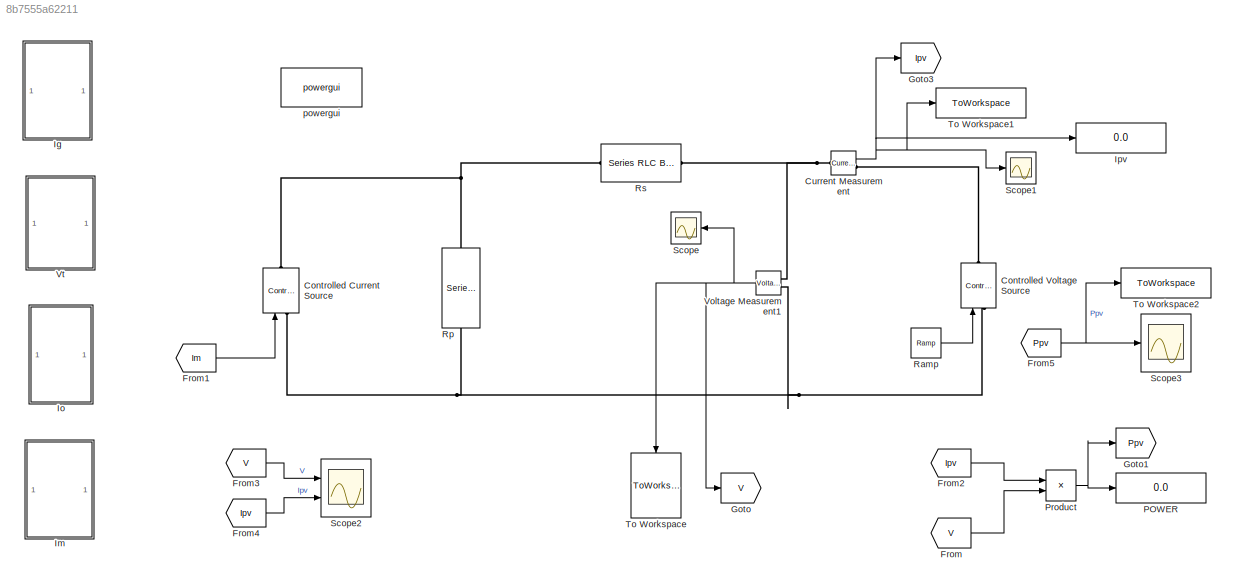
MODEL slx_8b7555a62211
KIND model
CONFIG AbsTol = auto
CONFIG EnableMultiTasking = off
CONFIG FixedStep = auto
CONFIG InitFcn = Voc=32.9;\nIscn=8.21;\nk=1.38e-23;\nNs=54;\nNp=1;\nG=800;\nGn=1000;\nKv=-0.1230;\nKI=0.0032;\nT=301;\nTn=300;\nq=1.6e-19;\nn=1;\nI0n=9.85e-8;\nEg=1.12;\nIgn=8.214;\nRs=0.221;\nRp=414.5;\na=1.0
CONFIG MaxStep = auto
CONFIG MinStep = auto
CONFIG RelTol = 1e-3
CONFIG SampleTimeConstraint = Unconstrained
CONFIG Solver = VariableStepAuto
CONFIG SolverName = VariableStepAuto
CONFIG StartTime = 0.0
CONFIG StopTime = 25
BLOCK [Reference] Controlled Current Source  REF=powerlib/Electrical
Sources/Controlled Current Source
  NameLocation = right
  Ports = [1, 0, 0, 0, 0, 1, 1]
  SourceBlock = powerlib/Electrical\nSources/Controlled Current Source
  SourceProductBaseCode = PS
  SourceType = Controlled Current Source
BLOCK [Reference] Controlled Voltage Source  REF=powerlib/Electrical
Sources/Controlled Voltage Source
  NameLocation = right
  Ports = [1, 0, 0, 0, 0, 1, 1]
  SourceBlock = powerlib/Electrical\nSources/Controlled Voltage Source
  SourceProductBaseCode = PS
  SourceType = Controlled Voltage Source
BLOCK [Reference] Current Measurement  REF=powerlib/Measurements/Current Measurement
  Ports = [0, 1, 0, 0, 0, 1, 1]
  SourceBlock = powerlib/Measurements/Current Measurement
  SourceProductBaseCode = PS
  SourceType = Current Measurement
  UserDataPersistent = on
BLOCK [From] From
  GotoTag = V
  TagVisibility = global
BLOCK [From] From1
  GotoTag = Im
  TagVisibility = global
BLOCK [From] From2
  GotoTag = Ipv
  TagVisibility = global
BLOCK [From] From3
  GotoTag = V
  TagVisibility = global
BLOCK [From] From4
  GotoTag = Ipv
  TagVisibility = global
BLOCK [From] From5
  GotoTag = Ppv
  TagVisibility = global
BLOCK [Goto] Goto
  GotoTag = V
  TagVisibility = global
BLOCK [Goto] Goto1
  GotoTag = Ppv
  TagVisibility = global
BLOCK [Goto] Goto3
  GotoTag = Ipv
  TagVisibility = global
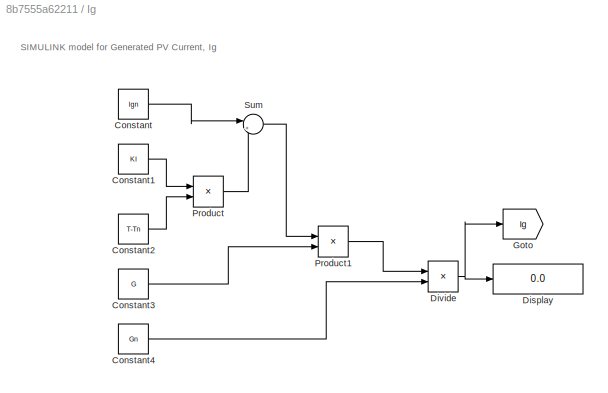
BLOCK [SubSystem] Ig
  Ports = []
  RequestExecContextInheritance = off
BLOCK [Constant] Ig/Constant
  Value = Ign
BLOCK [Constant] Ig/Constant1
  Value = KI
BLOCK [Constant] Ig/Constant2
  Value = T-Tn
BLOCK [Constant] Ig/Constant3
  Value = G
BLOCK [Constant] Ig/Constant4
  Value = Gn
BLOCK [Display] Ig/Display
  Decimation = 1
  Ports = [1]
BLOCK [Product] Ig/Divide
  Inputs = */
  Ports = [2, 1]
BLOCK [Goto] Ig/Goto
  GotoTag = Ig
  TagVisibility = global
BLOCK [Product] Ig/Product
  Ports = [2, 1]
BLOCK [Product] Ig/Product1
  Ports = [2, 1]
BLOCK [Sum] Ig/Sum
  Inputs = |++
  Ports = [2, 1]
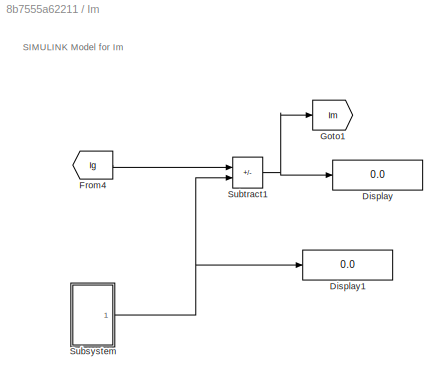
BLOCK [SubSystem] Im
  Ports = []
  RequestExecContextInheritance = off
BLOCK [Display] Im/Display
  Decimation = 1
  Ports = [1]
BLOCK [Display] Im/Display1
  Decimation = 1
  Ports = [1]
BLOCK [From] Im/From4
  GotoTag = Ig
  TagVisibility = global
BLOCK [Goto] Im/Goto1
  GotoTag = Im
  TagVisibility = global
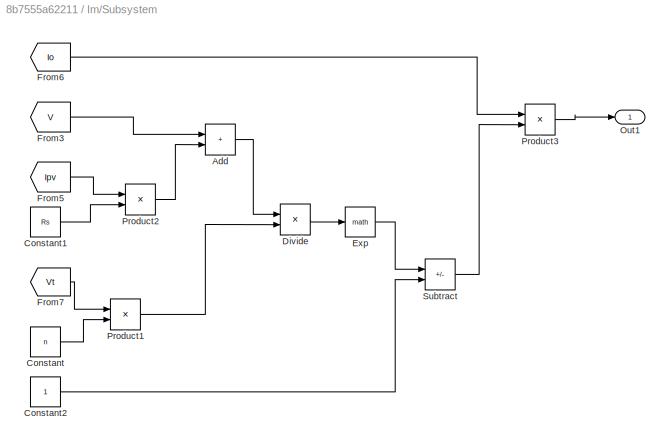
BLOCK [SubSystem] Im/Subsystem
  Ports = [0, 1]
  RequestExecContextInheritance = off
BLOCK [Sum] Im/Subsystem/Add
  IconShape = rectangular
  Ports = [2, 1]
BLOCK [Constant] Im/Subsystem/Constant
  Value = n
BLOCK [Constant] Im/Subsystem/Constant1
  Value = Rs
BLOCK [Constant] Im/Subsystem/Constant2
BLOCK [Product] Im/Subsystem/Divide
  Inputs = */
  Ports = [2, 1]
BLOCK [Math] Im/Subsystem/Exp
  Ports = [1, 1]
BLOCK [From] Im/Subsystem/From3
  GotoTag = V
  TagVisibility = global
BLOCK [From] Im/Subsystem/From5
  GotoTag = Ipv
  TagVisibility = global
BLOCK [From] Im/Subsystem/From6
  GotoTag = Io
  TagVisibility = global
BLOCK [From] Im/Subsystem/From7
  GotoTag = Vt
  TagVisibility = global
BLOCK [Outport] Im/Subsystem/Out1
BLOCK [Product] Im/Subsystem/Product1
  Ports = [2, 1]
BLOCK [Product] Im/Subsystem/Product2
  Ports = [2, 1]
BLOCK [Product] Im/Subsystem/Product3
  Ports = [2, 1]
BLOCK [Sum] Im/Subsystem/Subtract
  IconShape = rectangular
  Inputs = +-
  Ports = [2, 1]
BLOCK [Sum] Im/Subtract1
  IconShape = rectangular
  Inputs = +-
  Ports = [2, 1]
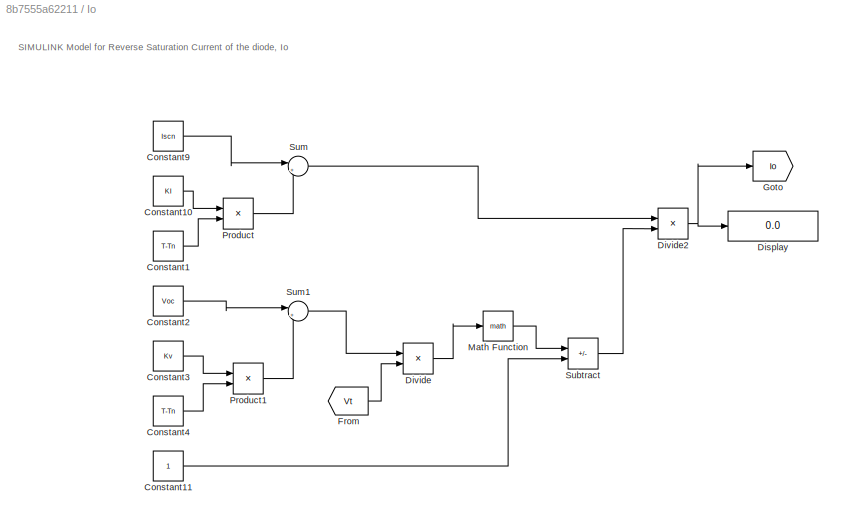
BLOCK [SubSystem] Io
  Ports = []
  RequestExecContextInheritance = off
BLOCK [Constant] Io/Constant1
  Value = T-Tn
BLOCK [Constant] Io/Constant10
  Value = KI
BLOCK [Constant] Io/Constant11
BLOCK [Constant] Io/Constant2
  Value = Voc
BLOCK [Constant] Io/Constant3
  Value = Kv
BLOCK [Constant] Io/Constant4
  Value = T-Tn
BLOCK [Constant] Io/Constant9
  Value = Iscn
BLOCK [Display] Io/Display
  Decimation = 1
  Ports = [1]
BLOCK [Product] Io/Divide
  Inputs = */
  Ports = [2, 1]
BLOCK [Product] Io/Divide2
  Inputs = */
  Ports = [2, 1]
BLOCK [From] Io/From
  GotoTag = Vt
  TagVisibility = global
BLOCK [Goto] Io/Goto
  GotoTag = Io
  TagVisibility = global
BLOCK [Math] Io/Math Function
  Ports = [1, 1]
BLOCK [Product] Io/Product
  Ports = [2, 1]
BLOCK [Product] Io/Product1
  Ports = [2, 1]
BLOCK [Sum] Io/Subtract
  IconShape = rectangular
  Inputs = +-
  Ports = [2, 1]
BLOCK [Sum] Io/Sum
  Inputs = |++
  Ports = [2, 1]
BLOCK [Sum] Io/Sum1
  Inputs = |++
  Ports = [2, 1]
BLOCK [Display] Ipv
  Decimation = 1
  Ports = [1]
BLOCK [Display] POWER
  Decimation = 1
  Ports = [1]
BLOCK [Product] Product
  Ports = [2, 1]
BLOCK [Reference] Ramp  REF=simulink/Sources/Ramp
  Ports = [0, 1]
  SourceBlock = simulink/Sources/Ramp
  SourceProductBaseCode = SL
  SourceType = Ramp
BLOCK [Reference] Rp  REF=powerlib/Elements/Series RLC Branch
  NameLocation = left
  Ports = [0, 0, 0, 0, 0, 1, 1]
  SourceBlock = powerlib/Elements/Series RLC Branch
  SourceProductBaseCode = PS
  SourceType = Series RLC Branch
BLOCK [Reference] Rs  REF=powerlib/Elements/Series RLC Branch
  Ports = [0, 0, 0, 0, 0, 1, 1]
  SourceBlock = powerlib/Elements/Series RLC Branch
  SourceProductBaseCode = PS
  SourceType = Series RLC Branch
BLOCK [Scope] Scope
  Floating = off
  NumInputPorts = 1
  Ports = [1]
  ScopeSpecificationString = Simulink.scopes.TimeScopeBlockCfg('CurrentConfiguration', extmgr.ConfigurationSet(extmgr.Configuration('Core','General UI',true),extmgr.Configuration('Core','Source UI',true),extmgr.Configuration('Sources','WiredSimulink',true),extmgr.Configuration('Visuals','Time Domain',true,'SerializedDisplays',{struct('MinYLimReal','-4.1125','MaxYLimReal','37.0125','YLabelReal','','MinYLimMag','0.00000','MaxYL...<+1417ch>
BLOCK [Scope] Scope1
  Floating = off
  NumInputPorts = 1
  Ports = [1]
  ScopeSpecificationString = Simulink.scopes.TimeScopeBlockCfg('CurrentConfiguration', extmgr.ConfigurationSet(extmgr.Configuration('Core','General UI',true),extmgr.Configuration('Core','Source UI',true),extmgr.Configuration('Sources','WiredSimulink',true,'DataLoggingVariableName','ScopeData1'),extmgr.Configuration('Visuals','Time Domain',true,'SerializedDisplays',{struct('MinYLimReal','8.1193','MaxYLimReal','8.22321','YLabel...<+1472ch>
BLOCK [Scope] Scope2
  Floating = off
  NumInputPorts = 2
  Ports = [2]
  ScopeSpecificationString = Simulink.scopes.TimeScopeBlockCfg('CurrentConfiguration', extmgr.ConfigurationSet(extmgr.Configuration('Core','General UI',true),extmgr.Configuration('Core','Source UI',true),extmgr.Configuration('Sources','WiredSimulink',true,'DataLoggingVariableName','ScopeData1'),extmgr.Configuration('Visuals','Time Domain',true,'SerializedDisplays',{struct('MinYLimReal','-3.125','MaxYLimReal','28.125','YLabelR...<+1410ch>
BLOCK [Scope] Scope3
  Floating = off
  NumInputPorts = 1
  Ports = [1]
  ScopeSpecificationString = Simulink.scopes.TimeScopeBlockCfg('CurrentConfiguration', extmgr.ConfigurationSet(extmgr.Configuration('Core','General UI',true),extmgr.Configuration('Core','Source UI',true),extmgr.Configuration('Sources','WiredSimulink',true,'DataLoggingVariableName','ScopeData2'),extmgr.Configuration('Visuals','Time Domain',true,'SerializedDisplays',{struct('MinYLimReal','-38.89439','MaxYLimReal','235.31701','Y...<+1470ch>
BLOCK [ToWorkspace] To Workspace
  FixptAsFi = on
  MaxDataPoints = inf
  NameLocation = left
  Ports = [1]
  SampleTime = -1
  SaveFormat = Timeseries
  VariableName = V
BLOCK [ToWorkspace] To Workspace1
  FixptAsFi = on
  MaxDataPoints = inf
  Ports = [1]
  SampleTime = -1
  SaveFormat = Timeseries
  VariableName = Ipv
BLOCK [ToWorkspace] To Workspace2
  FixptAsFi = on
  MaxDataPoints = inf
  Ports = [1]
  SampleTime = -1
  SaveFormat = Timeseries
  VariableName = Ppv
BLOCK [Reference] Voltage Measurement1  REF=powerlib/Measurements/Voltage Measurement
  Ports = [0, 1, 0, 0, 0, 2]
  SourceBlock = powerlib/Measurements/Voltage Measurement
  SourceProductBaseCode = PS
  SourceType = Voltage Measurement
  UserDataPersistent = on
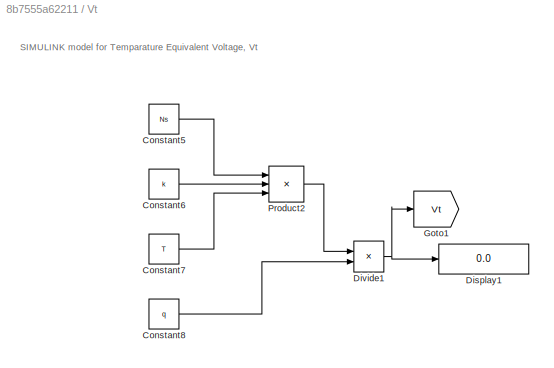
BLOCK [SubSystem] Vt
  Ports = []
  RequestExecContextInheritance = off
BLOCK [Constant] Vt/Constant5
  Value = Ns
BLOCK [Constant] Vt/Constant6
  Value = k
BLOCK [Constant] Vt/Constant7
  Value = T
BLOCK [Constant] Vt/Constant8
  Value = q
BLOCK [Display] Vt/Display1
  Decimation = 1
  Ports = [1]
BLOCK [Product] Vt/Divide1
  Inputs = */
  Ports = [2, 1]
BLOCK [Goto] Vt/Goto1
  GotoTag = Vt
  TagVisibility = global
BLOCK [Product] Vt/Product2
  Inputs = 3
  Ports = [3, 1]
BLOCK [Reference] powergui  REF=powerlib/powergui
  Ports = []
  Priority = 1
  SourceBlock = powerlib/powergui
  SourceProductBaseCode = PS
  SourceType = PSB option menu block
ANNOTATION Ig: SIMULINK model for Generated PV Current, Ig
ANNOTATION Im: SIMULINK Model for Im
ANNOTATION Io: SIMULINK Model for Reverse Saturation Current of the diode, Io
ANNOTATION Vt: SIMULINK model for Temparature Equivalent Voltage, Vt
NET Current Measurement:1 -> Goto3:1, Ipv:1, Scope1:1, To Workspace1:1
LINE From1:1 -> Controlled Current Source:1
LINE From2:1 -> Product:1
LINE From3:1 -> Scope2:1
LINE From4:1 -> Scope2:2
NET From5:1 -> Scope3:1, To Workspace2:1
LINE From:1 -> Product:2
LINE Ig/Constant1:1 -> Ig/Product:1
LINE Ig/Constant2:1 -> Ig/Product:2
LINE Ig/Constant3:1 -> Ig/Product1:2
LINE Ig/Constant4:1 -> Ig/Divide:2
LINE Ig/Constant:1 -> Ig/Sum:1
NET Ig/Divide:1 -> Ig/Display:1, Ig/Goto:1
LINE Ig/Product1:1 -> Ig/Divide:1
LINE Ig/Product:1 -> Ig/Sum:2
LINE Ig/Sum:1 -> Ig/Product1:1
LINE Im/From4:1 -> Im/Subtract1:1
LINE Im/Subsystem/Add:1 -> Im/Subsystem/Divide:1
LINE Im/Subsystem/Constant1:1 -> Im/Subsystem/Product2:2
LINE Im/Subsystem/Constant2:1 -> Im/Subsystem/Subtract:2
LINE Im/Subsystem/Constant:1 -> Im/Subsystem/Product1:2
LINE Im/Subsystem/Divide:1 -> Im/Subsystem/Exp:1
LINE Im/Subsystem/Exp:1 -> Im/Subsystem/Subtract:1
LINE Im/Subsystem/From3:1 -> Im/Subsystem/Add:1
LINE Im/Subsystem/From5:1 -> Im/Subsystem/Product2:1
LINE Im/Subsystem/From6:1 -> Im/Subsystem/Product3:1
LINE Im/Subsystem/From7:1 -> Im/Subsystem/Product1:1
LINE Im/Subsystem/Product1:1 -> Im/Subsystem/Divide:2
LINE Im/Subsystem/Product2:1 -> Im/Subsystem/Add:2
LINE Im/Subsystem/Product3:1 -> Im/Subsystem/Out1:1
LINE Im/Subsystem/Subtract:1 -> Im/Subsystem/Product3:2
NET Im/Subsystem:1 -> Im/Display1:1, Im/Subtract1:2
NET Im/Subtract1:1 -> Im/Display:1, Im/Goto1:1
LINE Io/Constant10:1 -> Io/Product:1
LINE Io/Constant11:1 -> Io/Subtract:2
LINE Io/Constant1:1 -> Io/Product:2
LINE Io/Constant2:1 -> Io/Sum1:1
LINE Io/Constant3:1 -> Io/Product1:1
LINE Io/Constant4:1 -> Io/Product1:2
LINE Io/Constant9:1 -> Io/Sum:1
NET Io/Divide2:1 -> Io/Display:1, Io/Goto:1
LINE Io/Divide:1 -> Io/Math Function:1
LINE Io/From:1 -> Io/Divide:2
LINE Io/Math Function:1 -> Io/Subtract:1
LINE Io/Product1:1 -> Io/Sum1:2
LINE Io/Product:1 -> Io/Sum:2
LINE Io/Subtract:1 -> Io/Divide2:2
LINE Io/Sum1:1 -> Io/Divide:1
LINE Io/Sum:1 -> Io/Divide2:1
NET Product:1 -> Goto1:1, POWER:1
LINE Ramp:1 -> Controlled Voltage Source:1
NET Voltage Measurement1:1 -> Goto:1, Scope:1, To Workspace:1
LINE Vt/Constant5:1 -> Vt/Product2:1
LINE Vt/Constant6:1 -> Vt/Product2:2
LINE Vt/Constant7:1 -> Vt/Product2:3
LINE Vt/Constant8:1 -> Vt/Divide1:2
NET Vt/Divide1:1 -> Vt/Display1:1, Vt/Goto1:1
LINE Vt/Product2:1 -> Vt/Divide1:1
PNET net1: Controlled Current Source:LConn1 -- Controlled Voltage Source:LConn1 -- Rp:RConn1 -- Voltage Measurement1:LConn2
PNET net2: Controlled Current Source:RConn1 -- Rp:LConn1 -- Rs:LConn1
PLINE Controlled Voltage Source:RConn1 -- Current Measurement:RConn1
PNET net3: Current Measurement:LConn1 -- Rs:RConn1 -- Voltage Measurement1:LConn1
note: NET lines group one-source signal fan-out (src -> all destinations, sorted); 1:1 wires keep LINE; PNET lines group multi-terminal physical nets as a canonical sorted terminal list (undirected conserving connections); 2-terminal nets keep the pairwise PLINE form
